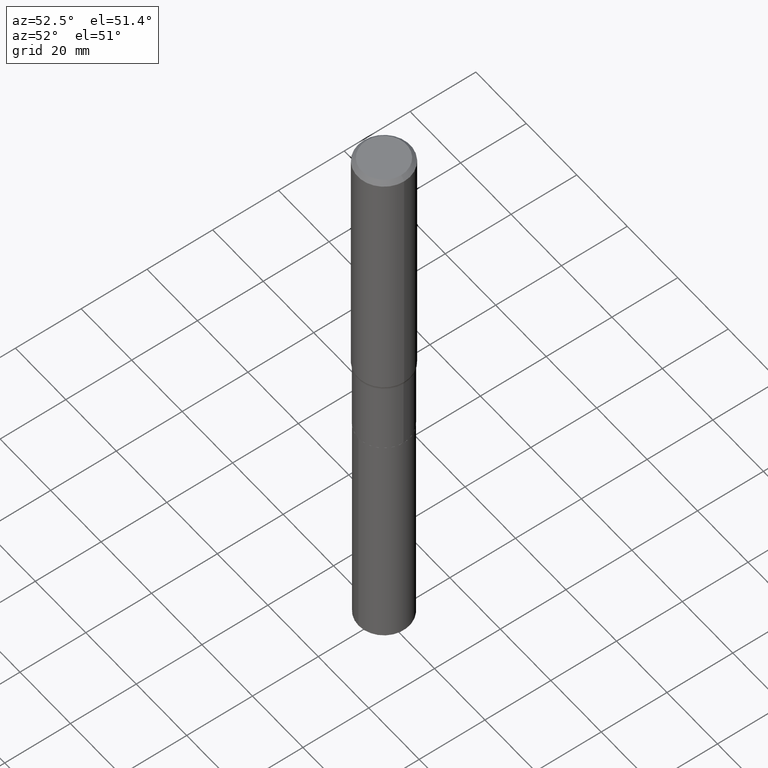
[diagram: clean part render]
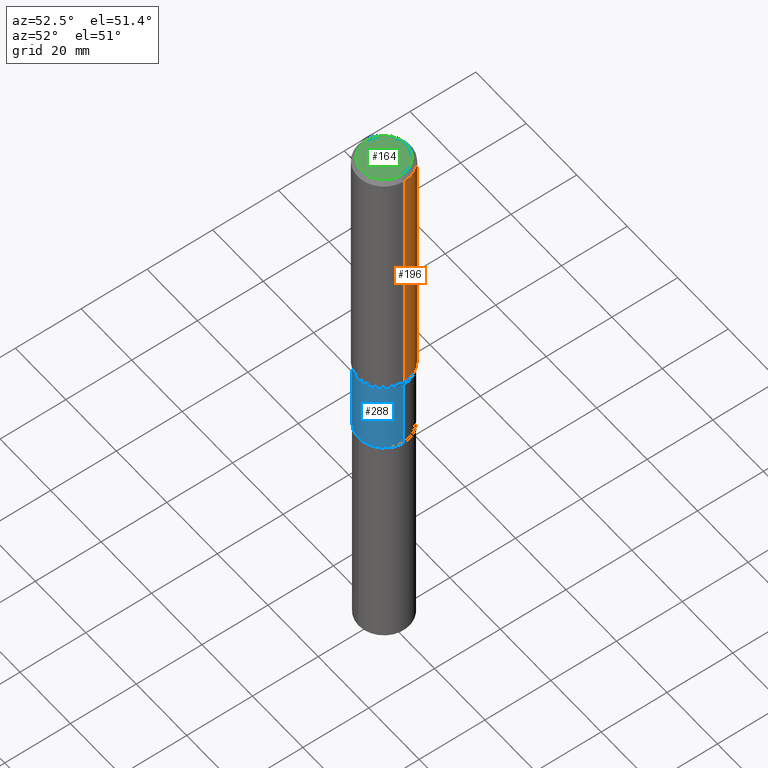
[diagram: same view with three faces highlighted in distinct colors, each labeled with its STEP entity id]
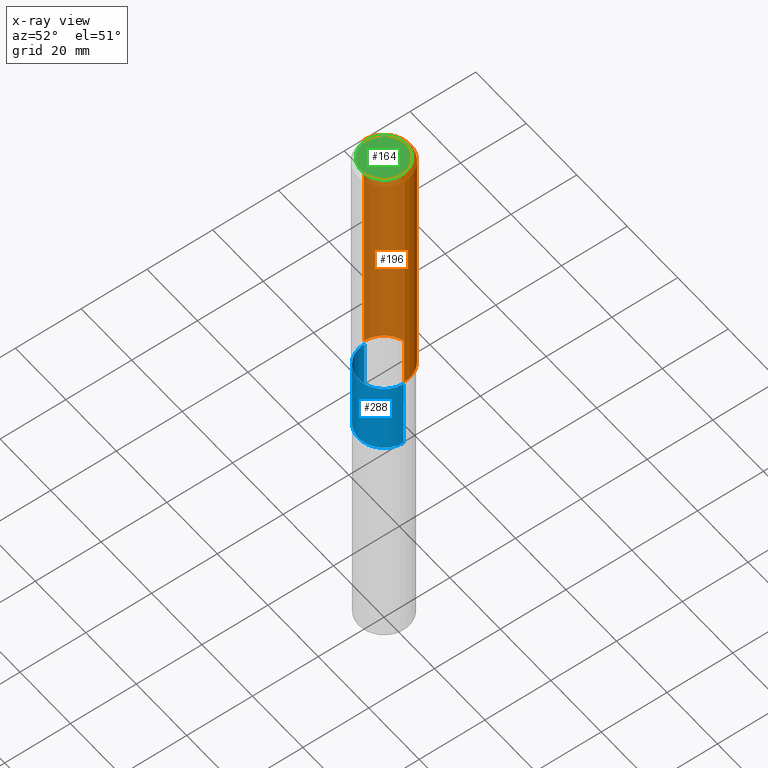
[diagram: x-ray of the same camera — body ghosted, the three highlighted faces saturated]
A machine part, auxiliary view with three faces highlighted in distinct colors.
The next image is the same camera in x-ray (body ghosted, the three faces saturated) — at least one of them is partly hidden behind the body in this view.
Their STEP definitions:

[orange] entity #196 — the highlighted cylindrical surface (edge-blend (fillet) strip) has radius 7.9997 mm, axis along (-0, 0, 1).
#16 = VERTEX_POINT ( 'NONE', #239 ) ;
#18 = DIRECTION ( 'NONE',  ( 1.000000000000000000, -6.982962677686267499E-15, 4.876176775795936353E-29 ) ) ;
#30 = EDGE_CURVE ( 'NONE', #189, #16, #366, .T. ) ;
#41 = ORIENTED_EDGE ( 'NONE', *, *, #213, .F. ) ;
#43 = LINE ( 'NONE', #287, #148 ) ;
#45 = DIRECTION ( 'NONE',  ( 1.000000000000000000, -6.982962677686267499E-15, 0.000000000000000000 ) ) ;
#81 = DIRECTION ( 'NONE',  ( -2.445468806185136597E-29, 3.491481338843145583E-15, 1.000000000000000000 ) ) ;
#82 = CYLINDRICAL_SURFACE ( 'NONE', #267, 0.3149500000000002853 ) ;
#98 = CARTESIAN_POINT ( 'NONE',  ( 1.155300600762021849E-30, -1.649463071502985251E-16, -0.04724250000000034672 ) ) ;
#119 = CARTESIAN_POINT ( 'NONE',  ( 0.3149500000000002853, -2.199284095337291843E-15, 1.535751875536931531E-29 ) ) ;
#121 = DIRECTION ( 'NONE',  ( 1.000000000000000000, -6.982962677686266711E-15, 0.000000000000000000 ) ) ;
#131 = AXIS2_PLACEMENT_3D ( 'NONE', #413, #81, #45 ) ;
#148 = VECTOR ( 'NONE', #466, 39.37007874015748143 ) ;
#154 = DIRECTION ( 'NONE',  ( -2.445468806185136597E-29, 3.491481338843145583E-15, 1.000000000000000000 ) ) ;
#160 = ORIENTED_EDGE ( 'NONE', *, *, #30, .F. ) ;
#165 = DIRECTION ( 'NONE',  ( -2.445468806185136877E-29, 3.491481338843145188E-15, 1.000000000000000000 ) ) ;
#189 = VERTEX_POINT ( 'NONE', #419 ) ;
#192 = CARTESIAN_POINT ( 'NONE',  ( 0.000000000000000000, 0.000000000000000000, 0.000000000000000000 ) ) ;
#196 = ADVANCED_FACE ( 'NONE', ( #301 ), #82, .T. ) ;
#210 = VERTEX_POINT ( 'NONE', #303 ) ;
#213 = EDGE_CURVE ( 'NONE', #347, #189, #382, .T. ) ;
#239 = CARTESIAN_POINT ( 'NONE',  ( -0.3149500000000000632, -3.263122932024328239E-15, -0.04724250000000034672 ) ) ;
#247 = EDGE_CURVE ( 'NONE', #347, #210, #292, .T. ) ;
#267 = AXIS2_PLACEMENT_3D ( 'NONE', #192, #383, #18 ) ;
#275 = ORIENTED_EDGE ( 'NONE', *, *, #247, .T. ) ;
#281 = VECTOR ( 'NONE', #165, 39.37007874015748143 ) ;
#287 = CARTESIAN_POINT ( 'NONE',  ( -0.3149500000000002853, 2.237854346276437562E-15, -1.549218606675783797E-29 ) ) ;
#292 = CIRCLE ( 'NONE', #131, 0.3149500000000003963 ) ;
#301 = FACE_OUTER_BOUND ( 'NONE', #434, .T. ) ;
#303 = CARTESIAN_POINT ( 'NONE',  ( -0.3149500000000003408, -8.599153903174796155E-15, -3.103842523483722360 ) ) ;
#334 = AXIS2_PLACEMENT_3D ( 'NONE', #98, #154, #121 ) ;
#347 = VERTEX_POINT ( 'NONE', #445 ) ;
#366 = CIRCLE ( 'NONE', #334, 0.3149500000000000632 ) ;
#382 = LINE ( 'NONE', #119, #281 ) ;
#383 = DIRECTION ( 'NONE',  ( -2.445468806185136597E-29, 3.491481338843145583E-15, 1.000000000000000000 ) ) ;
#413 = CARTESIAN_POINT ( 'NONE',  ( 7.590350070490401583E-29, -1.083700824945123372E-14, -3.103842523483722360 ) ) ;
#419 = CARTESIAN_POINT ( 'NONE',  ( 0.3149500000000000632, -2.364230402487588938E-15, -0.04724250000000034672 ) ) ;
#423 = EDGE_CURVE ( 'NONE', #210, #16, #43, .T. ) ;
#434 = EDGE_LOOP ( 'NONE', ( #275, #442, #160, #41 ) ) ;
#442 = ORIENTED_EDGE ( 'NONE', *, *, #423, .T. ) ;
#445 = CARTESIAN_POINT ( 'NONE',  ( 0.3149500000000003408, -1.303629234478852674E-14, -3.103842523483722360 ) ) ;
#466 = DIRECTION ( 'NONE',  ( -2.445468806185136877E-29, 3.491481338843145188E-15, 1.000000000000000000 ) ) ;

[blue] entity #288 — the highlighted cylindrical surface (edge-blend (fillet) strip) has radius 7.7495 mm, axis along (-0, 0, 1).
#1 = EDGE_CURVE ( 'NONE', #9, #276, #67, .T. ) ;
#9 = VERTEX_POINT ( 'NONE', #286 ) ;
#26 = DIRECTION ( 'NONE',  ( -2.445468806185136597E-29, 3.491481338843145583E-15, 1.000000000000000000 ) ) ;
#38 = ORIENTED_EDGE ( 'NONE', *, *, #388, .F. ) ;
#40 = AXIS2_PLACEMENT_3D ( 'NONE', #392, #26, #88 ) ;
#48 = CIRCLE ( 'NONE', #393, 0.3050999999999998158 ) ;
#50 = CYLINDRICAL_SURFACE ( 'NONE', #40, 0.3050999999999999268 ) ;
#52 = CARTESIAN_POINT ( 'NONE',  ( 0.3050999999999999268, -2.130501912962079080E-15, 1.487721534295339594E-29 ) ) ;
#61 = DIRECTION ( 'NONE',  ( 1.000000000000000000, -6.982962677686264344E-15, 0.000000000000000000 ) ) ;
#62 = LINE ( 'NONE', #116, #238 ) ;
#64 = CARTESIAN_POINT ( 'NONE',  ( 0.3050999999999998158, -1.310178372400889783E-14, -3.142300000000000537 ) ) ;
#65 = CARTESIAN_POINT ( 'NONE',  ( -0.3050999999999998158, -1.036585382337506044E-14, -3.142300000000000537 ) ) ;
#67 = CIRCLE ( 'NONE', #197, 0.3050999999999999268 ) ;
#88 = DIRECTION ( 'NONE',  ( 1.000000000000000000, -6.982962677686265133E-15, 4.876176775795935793E-29 ) ) ;
#101 = EDGE_CURVE ( 'NONE', #276, #357, #198, .T. ) ;
#116 = CARTESIAN_POINT ( 'NONE',  ( -0.3050999999999999268, 2.167865886804065147E-15, -1.500767096036771338E-29 ) ) ;
#137 = DIRECTION ( 'NONE',  ( -2.445468806185136597E-29, 3.491481338843145583E-15, 1.000000000000000000 ) ) ;
#156 = CARTESIAN_POINT ( 'NONE',  ( 0.3050999999999999268, -1.622665952227350913E-14, -4.037300000000000111 ) ) ;
#158 = VERTEX_POINT ( 'NONE', #65 ) ;
#172 = DIRECTION ( 'NONE',  ( -2.445468806185136877E-29, 3.491481338843145188E-15, 1.000000000000000000 ) ) ;
#197 = AXIS2_PLACEMENT_3D ( 'NONE', #225, #137, #61 ) ;
#198 = LINE ( 'NONE', #52, #463 ) ;
#206 = DIRECTION ( 'NONE',  ( -2.445468806185136597E-29, 3.491481338843145583E-15, 1.000000000000000000 ) ) ;
#223 = DIRECTION ( 'NONE',  ( -2.445468806185136877E-29, 3.491481338843145188E-15, 1.000000000000000000 ) ) ;
#225 = CARTESIAN_POINT ( 'NONE',  ( 9.873091211211252113E-29, -1.409615760931143202E-14, -4.037300000000000111 ) ) ;
#238 = VECTOR ( 'NONE', #172, 39.37007874015748143 ) ;
#276 = VERTEX_POINT ( 'NONE', #156 ) ;
#286 = CARTESIAN_POINT ( 'NONE',  ( -0.3050999999999999823, -1.036585382337505728E-14, -4.037300000000000111 ) ) ;
#288 = ADVANCED_FACE ( 'NONE', ( #378 ), #50, .T. ) ;
#298 = ORIENTED_EDGE ( 'NONE', *, *, #381, .F. ) ;
#304 = ORIENTED_EDGE ( 'NONE', *, *, #101, .T. ) ;
#317 = CARTESIAN_POINT ( 'NONE',  ( 7.684396629675556742E-29, -1.097128181104681915E-14, -3.142300000000000537 ) ) ;
#332 = EDGE_LOOP ( 'NONE', ( #298, #420, #304, #38 ) ) ;
#357 = VERTEX_POINT ( 'NONE', #64 ) ;
#378 = FACE_OUTER_BOUND ( 'NONE', #332, .T. ) ;
#381 = EDGE_CURVE ( 'NONE', #9, #158, #62, .T. ) ;
#388 = EDGE_CURVE ( 'NONE', #158, #357, #48, .T. ) ;
#392 = CARTESIAN_POINT ( 'NONE',  ( 0.000000000000000000, 0.000000000000000000, 0.000000000000000000 ) ) ;
#393 = AXIS2_PLACEMENT_3D ( 'NONE', #317, #206, #409 ) ;
#409 = DIRECTION ( 'NONE',  ( 1.000000000000000000, -6.982962677686266711E-15, 0.000000000000000000 ) ) ;
#420 = ORIENTED_EDGE ( 'NONE', *, *, #1, .T. ) ;
#463 = VECTOR ( 'NONE', #223, 39.37007874015748143 ) ;

[green] entity #164 — the highlighted planar face has unit normal (0, -0, -1).
#13 = VERTEX_POINT ( 'NONE', #201 ) ;
#23 = AXIS2_PLACEMENT_3D ( 'NONE', #264, #194, #255 ) ;
#27 = EDGE_CURVE ( 'NONE', #320, #13, #134, .T. ) ;
#32 = FACE_OUTER_BOUND ( 'NONE', #314, .T. ) ;
#56 = DIRECTION ( 'NONE',  ( 1.000000000000000000, -6.982962677686267499E-15, 4.876236838442819371E-29 ) ) ;
#90 = EDGE_CURVE ( 'NONE', #13, #320, #344, .T. ) ;
#99 = PLANE ( 'NONE',  #23 ) ;
#134 = CIRCLE ( 'NONE', #207, 0.2677074999999999871 ) ;
#164 = ADVANCED_FACE ( 'NONE', ( #32 ), #99, .F. ) ;
#194 = DIRECTION ( 'NONE',  ( 2.438088387897960049E-29, -3.491481338843145188E-15, -1.000000000000000000 ) ) ;
#201 = CARTESIAN_POINT ( 'NONE',  ( 0.2677074999999999871, -2.081133459643432627E-15, 4.096137381461924987E-18 ) ) ;
#207 = AXIS2_PLACEMENT_3D ( 'NONE', #316, #458, #278 ) ;
#230 = CARTESIAN_POINT ( 'NONE',  ( -1.001697619218022568E-46, 1.430158722866391086E-32, 4.096137381448112218E-18 ) ) ;
#255 = DIRECTION ( 'NONE',  ( -1.000000000000000000, 6.982962677686265922E-15, -4.876176775795935793E-29 ) ) ;
#264 = CARTESIAN_POINT ( 'NONE',  ( -5.008488096090112840E-47, 7.150793614331955432E-33, 2.048068690724056109E-18 ) ) ;
#278 = DIRECTION ( 'NONE',  ( 1.000000000000000000, -6.982962677686267499E-15, 4.876236838442819371E-29 ) ) ;
#282 = ORIENTED_EDGE ( 'NONE', *, *, #90, .T. ) ;
#293 = ORIENTED_EDGE ( 'NONE', *, *, #27, .T. ) ;
#314 = EDGE_LOOP ( 'NONE', ( #293, #282 ) ) ;
#316 = CARTESIAN_POINT ( 'NONE',  ( -1.001697619218022568E-46, 1.430158722866391086E-32, 4.096137381448112218E-18 ) ) ;
#320 = VERTEX_POINT ( 'NONE', #349 ) ;
#344 = CIRCLE ( 'NONE', #446, 0.2677074999999999871 ) ;
#349 = CARTESIAN_POINT ( 'NONE',  ( -0.2677074999999999871, 1.951864634611843833E-15, 4.096137381434750116E-18 ) ) ;
#385 = DIRECTION ( 'NONE',  ( -2.445468806185136597E-29, 3.491481338843145583E-15, 1.000000000000000000 ) ) ;
#446 = AXIS2_PLACEMENT_3D ( 'NONE', #230, #385, #56 ) ;
#458 = DIRECTION ( 'NONE',  ( -2.445468806185136597E-29, 3.491481338843145583E-15, 1.000000000000000000 ) ) ;